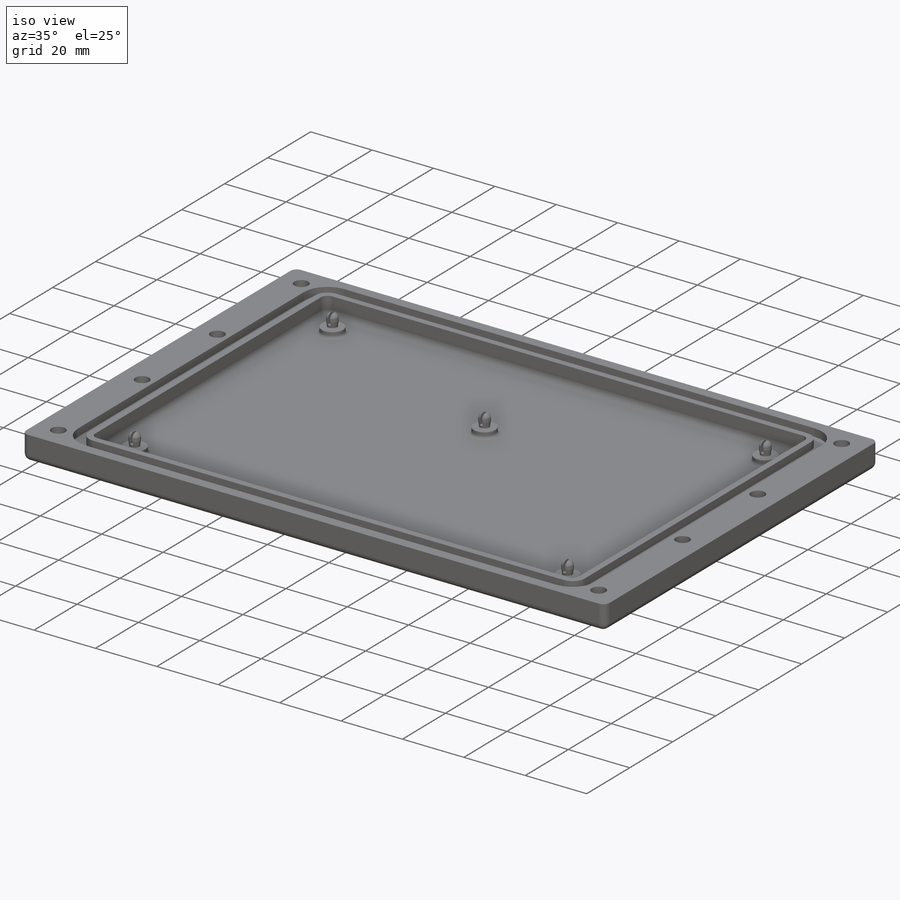
[diagram: iso view]
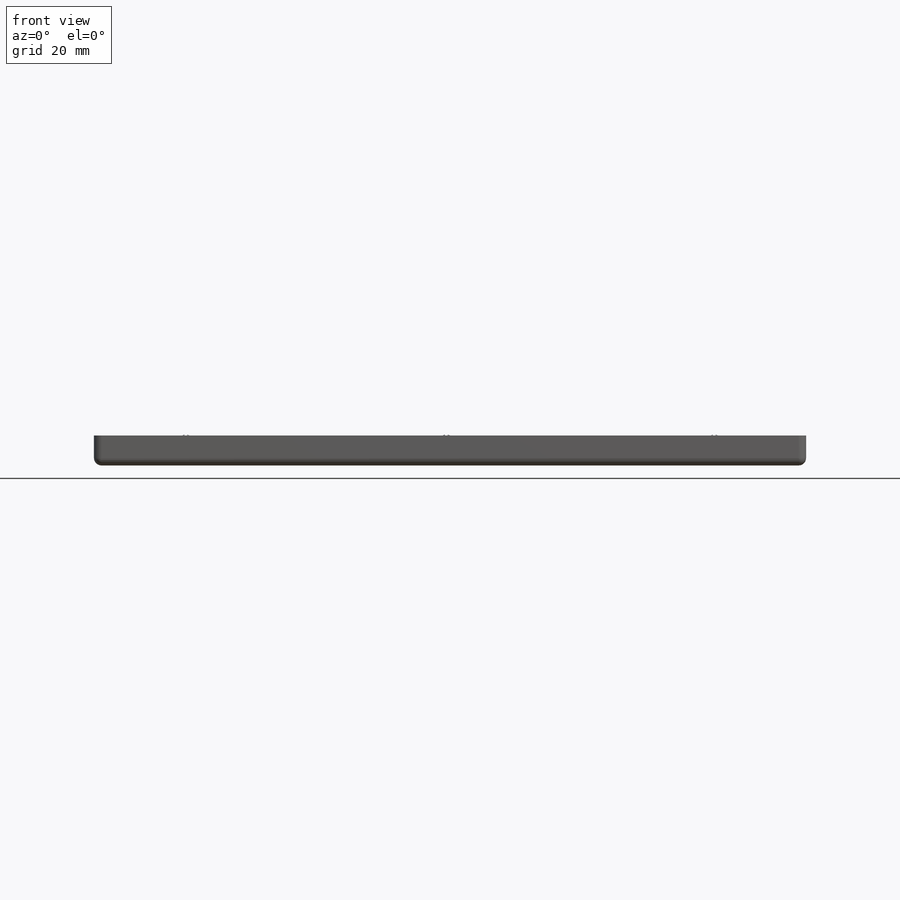
[diagram: front view]
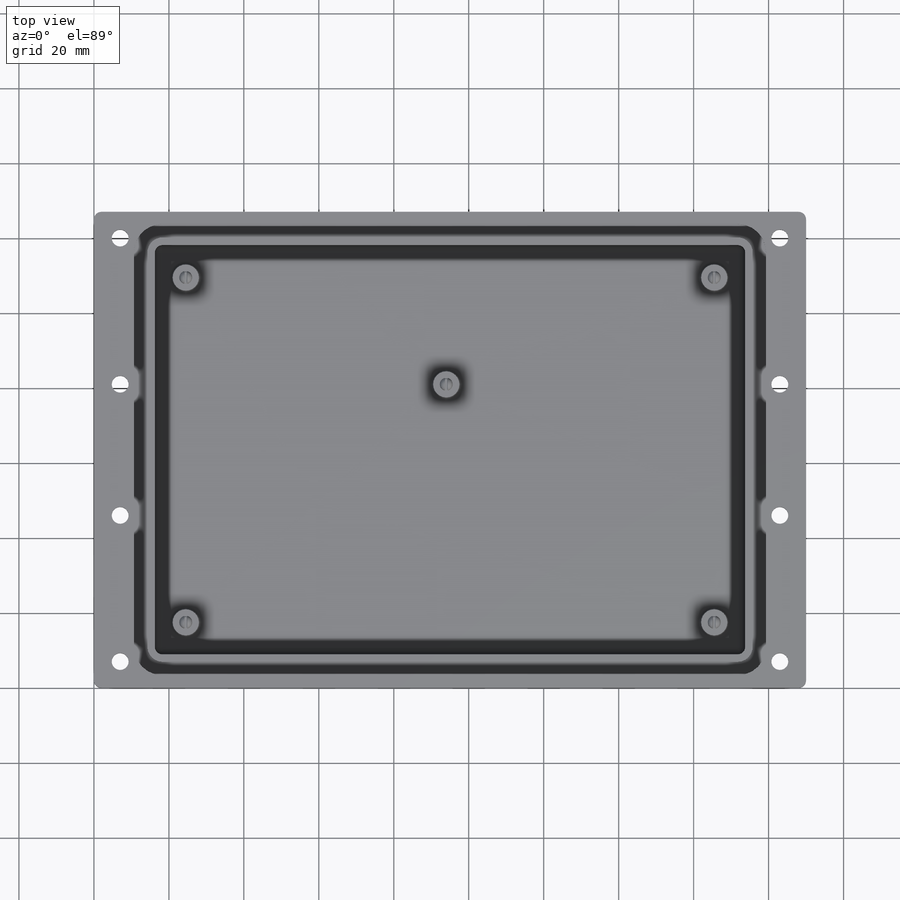
[diagram: top view]
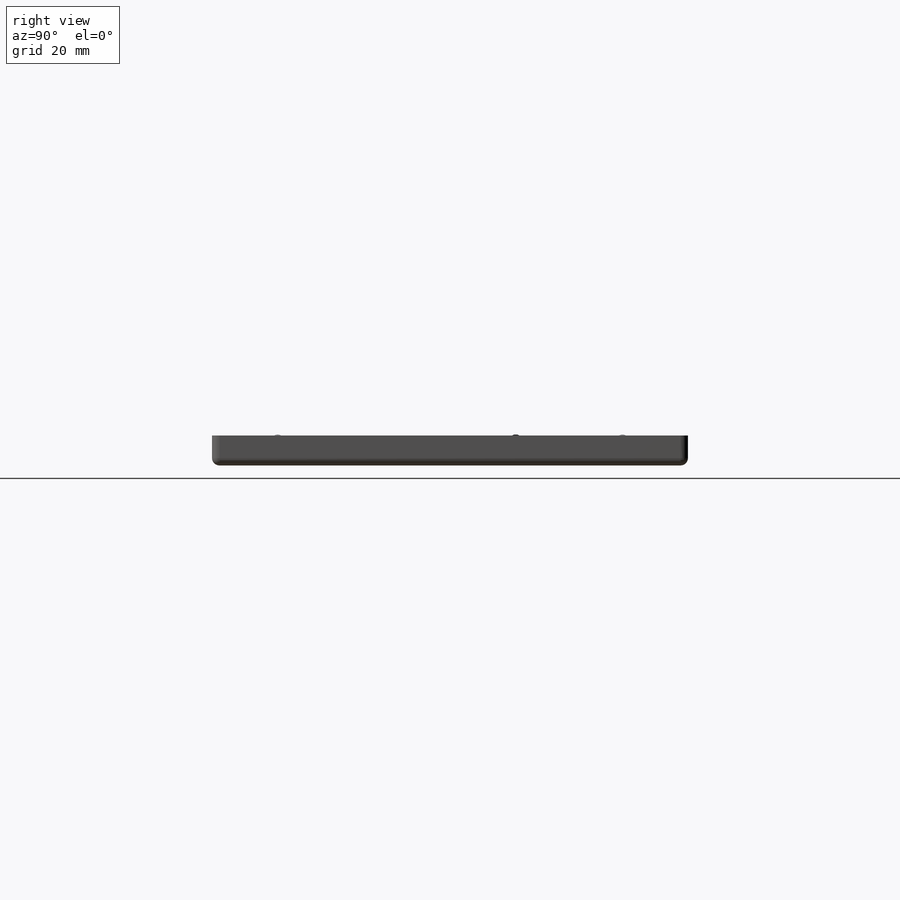
[diagram: right view]
SOLIDWORKS PART (.sldprt)
format: sldprt  version: not decoded by parser v0  size: 760,320 bytes
history: native  units: mm
features: sketch x9, fillet x5, cut_extrude x5, dome x5, extrude x4, material x1 (+11 scaffold rows collapsed)
feature tree (40):
  scaffold x11  (default folders/planes/origin — collapsed)
  material  "Material <not specified>"
  sketch  "Sketch1"  dims[D1=127.0mm D2=190.0mm]
  extrude  "Boss-Extrude1"  Depth=8mm
  fillet  "Fillet1"  Radius=2mm
  sketch  "Sketch2"  dims[D1=109.22mm D2=157.48mm]
  cut_extrude  "Cut-Extrude1"  Depth=6mm
  fillet  "Fillet2"  Radius=2mm
  sketch  "Sketch3"  dims[D1=2.0mm D2=3.6mm D3=1.5mm]
  cut_extrude  "Cut-Extrude2"  Depth=2.5mm
  sketch  "Sketch4"  dims[D1=7.0mm]
  extrude  "Boss-Extrude2"  Depth=2mm
  fillet  "Fillet3"  Radius=1mm
  sketch  "Sketch7"  dims[D1=2.8mm]
  extrude  "Boss-Extrude3"  Depth=2mm
  sketch  "Sketch8"
  extrude  "Boss-Extrude4"  Depth=1mm
  dome  "Dome2"
  dome  "Dome3"
  dome  "Dome4"
  dome  "Dome5"
  dome  "Dome6"
  sketch  "Sketch9"  dims[D1=6.0mm D2=0.7mm]
  cut_extrude  "Cut-Extrude3"  Depth=1mm
  fillet  "Fillet4"  Radius=0.2mm
  fillet  "Fillet5"  Radius=0.3mm
  sketch  "Sketch10"
  cut_extrude  "Cut-Extrude4"  [1 undecoded]
  sketch  "Sketch11"  dims[D1=7.0mm D2=7.0mm]
  cut_extrude  "Cut-Extrude5"  Depth=3.2mm
decode coverage: 20 of 28 modeling features carry decoded parameters
note: 1 parameter value undecoded
note: suppression state not decoded; provenance and decode notes live in map.json
